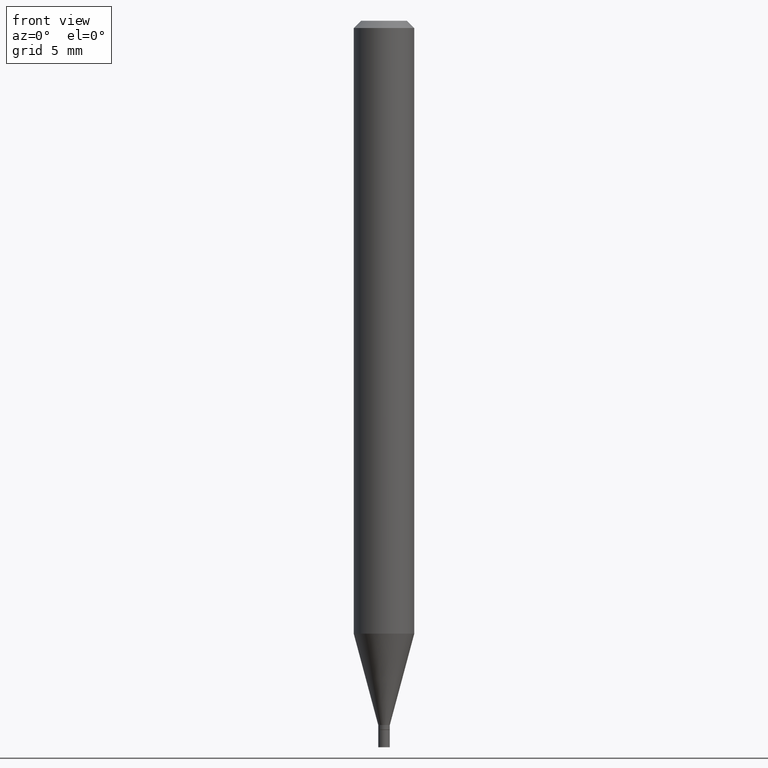
[diagram: clean part render]
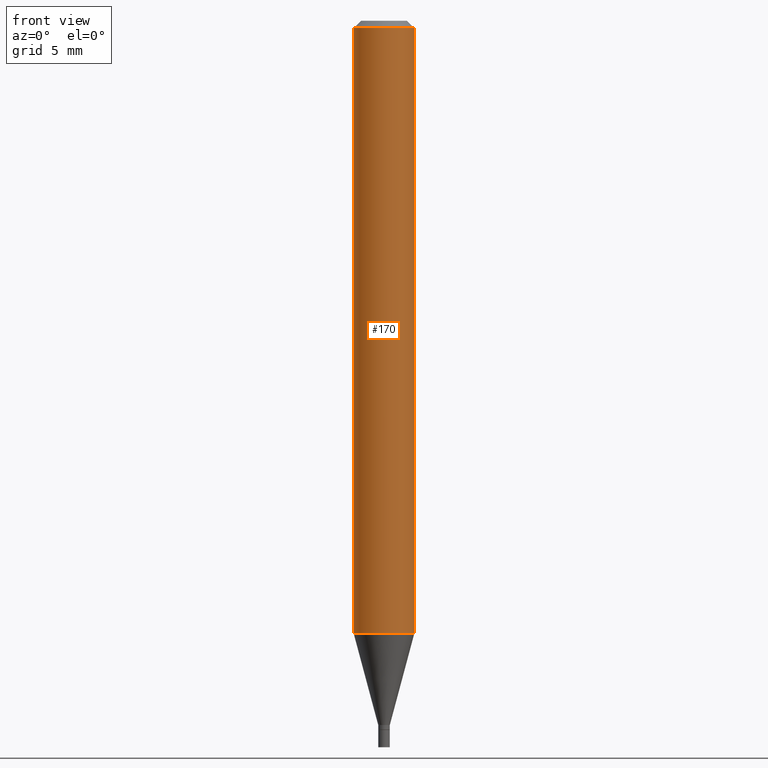
[diagram: same view with one face highlighted and labeled with its STEP entity id]
A machine part, front view. The second image highlights one B-rep face of the part: STEP entity #170.
In plain terms, the highlighted cylindrical surface (edge-blend (fillet) strip) has radius 1.5875 mm, axis along (-0, 0, 1).
Its self-contained STEP definition (entity closure, byte-faithful):
#3 = AXIS2_PLACEMENT_3D ( 'NONE', #223, #375, #192 ) ;
#23 = CARTESIAN_POINT ( 'NONE',  ( -0.06250000000000000000, 4.440892098500626162E-16, -3.074334431409316114E-30 ) ) ;
#49 = VECTOR ( 'NONE', #123, 39.37007874015748143 ) ;
#91 = CARTESIAN_POINT ( 'NONE',  ( 0.06250000000000000000, -4.888073874380388472E-16, -0.01499999999999999944 ) ) ;
#104 = EDGE_CURVE ( 'NONE', #427, #254, #428, .T. ) ;
#122 = VECTOR ( 'NONE', #455, 39.37007874015748143 ) ;
#123 = DIRECTION ( 'NONE',  ( -2.445468806185136877E-29, 3.491481338843145188E-15, 1.000000000000000000 ) ) ;
#138 = VERTEX_POINT ( 'NONE', #371 ) ;
#156 = CARTESIAN_POINT ( 'NONE',  ( -0.06250000000000000000, -1.791386593336637406E-15, -0.01499999999999999944 ) ) ;
#168 = LINE ( 'NONE', #309, #49 ) ;
#169 = ORIENTED_EDGE ( 'NONE', *, *, #353, .F. ) ;
#170 = ADVANCED_FACE ( 'NONE', ( #416 ), #449, .T. ) ;
#192 = DIRECTION ( 'NONE',  ( 1.000000000000000000, -6.982962677686266711E-15, 0.000000000000000000 ) ) ;
#198 = CARTESIAN_POINT ( 'NONE',  ( 0.000000000000000000, 0.000000000000000000, 0.000000000000000000 ) ) ;
#210 = AXIS2_PLACEMENT_3D ( 'NONE', #347, #261, #409 ) ;
#213 = EDGE_CURVE ( 'NONE', #275, #138, #269, .T. ) ;
#223 = CARTESIAN_POINT ( 'NONE',  ( 3.668203209277705088E-31, -5.237222008264718399E-17, -0.01499999999999999944 ) ) ;
#239 = DIRECTION ( 'NONE',  ( 1.000000000000000000, -6.982962677686266711E-15, 4.876176775795935793E-29 ) ) ;
#240 = ORIENTED_EDGE ( 'NONE', *, *, #104, .F. ) ;
#254 = VERTEX_POINT ( 'NONE', #91 ) ;
#255 = EDGE_LOOP ( 'NONE', ( #169, #358, #362, #240 ) ) ;
#259 = CARTESIAN_POINT ( 'NONE',  ( -0.06250000000000000000, -3.974490176440689955E-15, -1.265531434217771922 ) ) ;
#261 = DIRECTION ( 'NONE',  ( -2.445468806185136597E-29, 3.491481338843145583E-15, 1.000000000000000000 ) ) ;
#269 = CIRCLE ( 'NONE', #210, 0.06250000000000000000 ) ;
#275 = VERTEX_POINT ( 'NONE', #259 ) ;
#309 = CARTESIAN_POINT ( 'NONE',  ( 0.06250000000000000000, -4.364351673553916694E-16, 3.047610484872459871E-30 ) ) ;
#315 = AXIS2_PLACEMENT_3D ( 'NONE', #198, #384, #239 ) ;
#340 = LINE ( 'NONE', #23, #122 ) ;
#347 = CARTESIAN_POINT ( 'NONE',  ( 3.094817645626298552E-29, -4.418579386290752571E-15, -1.265531434217771922 ) ) ;
#353 = EDGE_CURVE ( 'NONE', #275, #427, #340, .T. ) ;
#358 = ORIENTED_EDGE ( 'NONE', *, *, #213, .T. ) ;
#362 = ORIENTED_EDGE ( 'NONE', *, *, #437, .T. ) ;
#371 = CARTESIAN_POINT ( 'NONE',  ( 0.06250000000000000000, -4.855014553646144241E-15, -1.265531434217771922 ) ) ;
#375 = DIRECTION ( 'NONE',  ( -2.445468806185136597E-29, 3.491481338843145583E-15, 1.000000000000000000 ) ) ;
#384 = DIRECTION ( 'NONE',  ( -2.445468806185136597E-29, 3.491481338843145583E-15, 1.000000000000000000 ) ) ;
#409 = DIRECTION ( 'NONE',  ( 1.000000000000000000, -6.982962677686262766E-15, 0.000000000000000000 ) ) ;
#416 = FACE_OUTER_BOUND ( 'NONE', #255, .T. ) ;
#427 = VERTEX_POINT ( 'NONE', #156 ) ;
#428 = CIRCLE ( 'NONE', #3, 0.06250000000000000000 ) ;
#437 = EDGE_CURVE ( 'NONE', #138, #254, #168, .T. ) ;
#449 = CYLINDRICAL_SURFACE ( 'NONE', #315, 0.06250000000000000000 ) ;
#455 = DIRECTION ( 'NONE',  ( -2.445468806185136877E-29, 3.491481338843145188E-15, 1.000000000000000000 ) ) ;